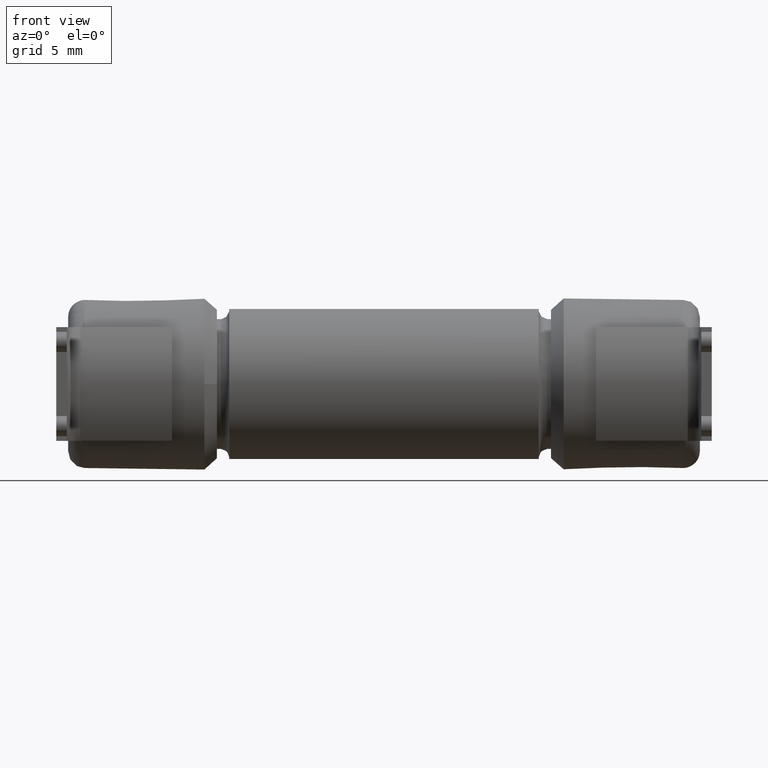
[diagram: clean part render]
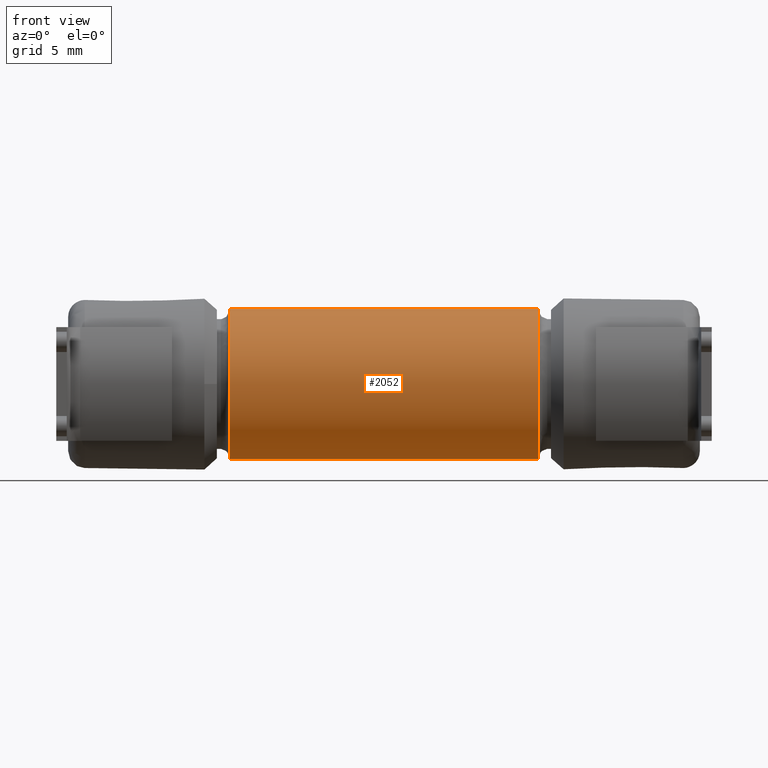
[diagram: same view with one face highlighted and labeled with its STEP entity id]
A machine part, front view. The second image highlights one B-rep face of the part: STEP entity #2052.
In plain terms, the highlighted cylindrical surface (bore or boss wall) has radius 4.5212 mm, axis along (-1, -0, 0).
Its self-contained STEP definition (entity closure, byte-faithful):
#31 = EDGE_LOOP ( 'NONE', ( #1128 ) ) ;
#97 = ORIENTED_EDGE ( 'NONE', *, *, #1248, .T. ) ;
#123 = CARTESIAN_POINT ( 'NONE',  ( -0.8032162200818828700, -5.696483093398453300E-034, 9.609062075340083000E-018 ) ) ;
#128 = CIRCLE ( 'NONE', #2370, 0.1780000000000000200 ) ;
#222 = AXIS2_PLACEMENT_3D ( 'NONE', #831, #2313, #1040 ) ;
#234 = CARTESIAN_POINT ( 'NONE',  ( 0.3450000000000010800, 2.446771638926967600E-034, 0.1780000000000000200 ) ) ;
#364 = CIRCLE ( 'NONE', #222, 0.1780000000000000200 ) ;
#416 = DIRECTION ( 'NONE',  ( 1.000000000000000000, 7.092091707034666800E-034, -1.196323210997966800E-017 ) ) ;
#525 = AXIS2_PLACEMENT_3D ( 'NONE', #123, #2296, #1890 ) ;
#831 = CARTESIAN_POINT ( 'NONE',  ( 1.080000000000003800, 7.659459043597467200E-034, -1.292029067877808100E-017 ) ) ;
#908 = CYLINDRICAL_SURFACE ( 'NONE', #525, 0.1780000000000000200 ) ;
#1040 = DIRECTION ( 'NONE',  ( 0.0000000000000000000, 0.0000000000000000000, 1.000000000000000000 ) ) ;
#1128 = ORIENTED_EDGE ( 'NONE', *, *, #2103, .T. ) ;
#1178 = FACE_OUTER_BOUND ( 'NONE', #31, .T. ) ;
#1248 = EDGE_CURVE ( 'NONE', #1404, #1404, #128, .T. ) ;
#1404 = VERTEX_POINT ( 'NONE', #234 ) ;
#1720 = CARTESIAN_POINT ( 'NONE',  ( 0.3450000000000010800, 2.446771638926967600E-034, -4.127315077942993400E-018 ) ) ;
#1890 = DIRECTION ( 'NONE',  ( 0.0000000000000000000, 0.0000000000000000000, 1.000000000000000000 ) ) ;
#1951 = DIRECTION ( 'NONE',  ( 0.0000000000000000000, 0.0000000000000000000, 1.000000000000000000 ) ) ;
#1986 = CARTESIAN_POINT ( 'NONE',  ( 1.080000000000003800, 7.659459043597467200E-034, 0.1780000000000000200 ) ) ;
#2052 = ADVANCED_FACE ( 'NONE', ( #1178, #2744 ), #908, .T. ) ;
#2103 = EDGE_CURVE ( 'NONE', #2468, #2468, #364, .T. ) ;
#2296 = DIRECTION ( 'NONE',  ( -1.000000000000000000, -7.092091707034666800E-034, 1.196323210997966800E-017 ) ) ;
#2313 = DIRECTION ( 'NONE',  ( -1.000000000000000000, -7.092091707034666800E-034, 1.196323210997966800E-017 ) ) ;
#2370 = AXIS2_PLACEMENT_3D ( 'NONE', #1720, #416, #1951 ) ;
#2468 = VERTEX_POINT ( 'NONE', #1986 ) ;
#2542 = EDGE_LOOP ( 'NONE', ( #97 ) ) ;
#2744 = FACE_OUTER_BOUND ( 'NONE', #2542, .T. ) ;